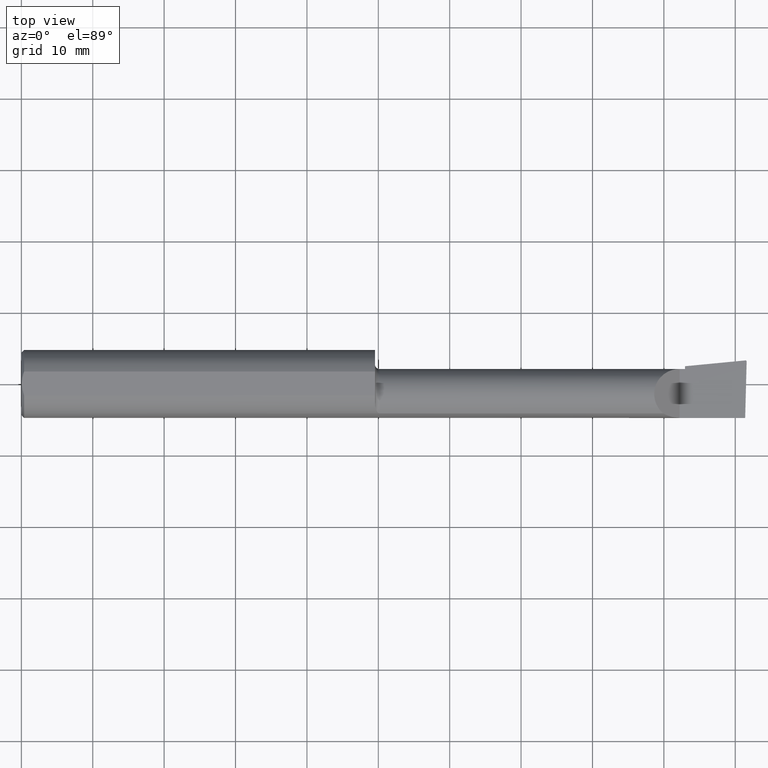
[diagram: clean part render]
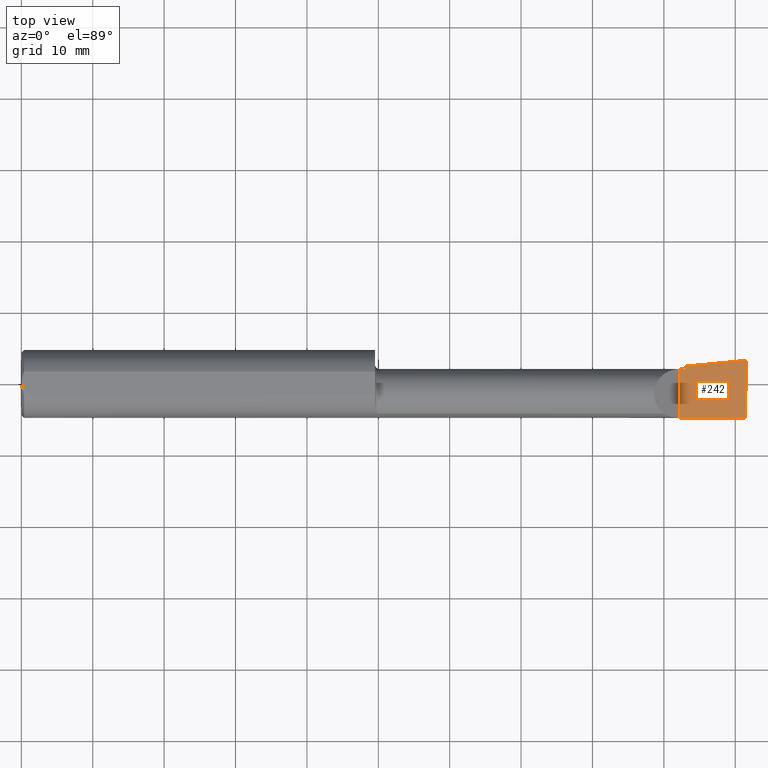
[diagram: same view with one face highlighted and labeled with its STEP entity id]
A machine part, top view. The second image highlights one B-rep face of the part: STEP entity #242.
In plain terms, the highlighted planar face has unit normal (-0, 0, -1).
Its self-contained STEP definition (entity closure, byte-faithful):
#16 = EDGE_CURVE ( 'NONE', #329, #281, #35, .T. ) ;
#35 = LINE ( 'NONE', #699, #364 ) ;
#38 = VERTEX_POINT ( 'NONE', #389 ) ;
#39 = CARTESIAN_POINT ( 'NONE',  ( 3.992906680581862489, 0.1299669910246663840, -1.701202096925064102E-16 ) ) ;
#40 = ORIENTED_EDGE ( 'NONE', *, *, #346, .T. ) ;
#46 = CARTESIAN_POINT ( 'NONE',  ( 3.992906680581862489, 0.1299669910246663840, -1.701202096925064102E-16 ) ) ;
#49 = VECTOR ( 'NONE', #416, 39.37007874015748143 ) ;
#50 = VERTEX_POINT ( 'NONE', #230 ) ;
#53 = ORIENTED_EDGE ( 'NONE', *, *, #272, .T. ) ;
#82 = AXIS2_PLACEMENT_3D ( 'NONE', #471, #138, #410 ) ;
#99 = VERTEX_POINT ( 'NONE', #171 ) ;
#109 = LINE ( 'NONE', #275, #567 ) ;
#113 = ORIENTED_EDGE ( 'NONE', *, *, #16, .F. ) ;
#136 = LINE ( 'NONE', #521, #218 ) ;
#138 = DIRECTION ( 'NONE',  ( -8.744705756855574331E-17, 0.000000000000000000, -1.000000000000000000 ) ) ;
#154 = CARTESIAN_POINT ( 'NONE',  ( 3.993310817358646236, 0.1299961668063693565, -1.707455450039281104E-16 ) ) ;
#157 = EDGE_CURVE ( 'NONE', #50, #38, #340, .T. ) ;
#171 = CARTESIAN_POINT ( 'NONE',  ( 3.629999999999999893, -0.1873499999999999888, -1.383850883036508279E-16 ) ) ;
#179 = EDGE_CURVE ( 'NONE', #284, #329, #185, .T. ) ;
#184 = FACE_OUTER_BOUND ( 'NONE', #426, .T. ) ;
#185 = LINE ( 'NONE', #409, #391 ) ;
#218 = VECTOR ( 'NONE', #628, 39.37007874015748143 ) ;
#230 = CARTESIAN_POINT ( 'NONE',  ( 3.999806390372749654, 0.1232563466314185591, -1.707108835695200937E-16 ) ) ;
#233 = CARTESIAN_POINT ( 'NONE',  ( 3.997312560284794092, 0.1299961668063694953, -1.710954856479654506E-16 ) ) ;
#241 = DIRECTION ( 'NONE',  ( -4.268512490100411279E-18, 1.000000000000000000, 3.732688574539098315E-34 ) ) ;
#242 = ADVANCED_FACE ( 'NONE', ( #184 ), #683, .F. ) ;
#250 = ORIENTED_EDGE ( 'NONE', *, *, #478, .F. ) ;
#255 = DIRECTION ( 'NONE',  ( 0.9953961983671787417, 0.09584575252022461966, -8.704446866213619353E-17 ) ) ;
#262 = EDGE_CURVE ( 'NONE', #99, #266, #360, .T. ) ;
#266 = VERTEX_POINT ( 'NONE', #582 ) ;
#272 = EDGE_CURVE ( 'NONE', #704, #50, #634, .T. ) ;
#275 = CARTESIAN_POINT ( 'NONE',  ( -5.978051742385470281E-19, 0.08265000000000000124, 1.790477306702064235E-16 ) ) ;
#281 = VERTEX_POINT ( 'NONE', #46 ) ;
#284 = VERTEX_POINT ( 'NONE', #533 ) ;
#306 = ORIENTED_EDGE ( 'NONE', *, *, #588, .F. ) ;
#329 = VERTEX_POINT ( 'NONE', #645 ) ;
#340 =( BOUNDED_CURVE ( )  B_SPLINE_CURVE ( 3, ( #444, #448, #233, #659 ),
 .UNSPECIFIED., .F., .F. ) 
 B_SPLINE_CURVE_WITH_KNOTS ( ( 4, 4 ),
 ( 1.953092279228259232, 3.511516179717479869 ),
 .UNSPECIFIED. ) 
 CURVE ( )  GEOMETRIC_REPRESENTATION_ITEM ( )  RATIONAL_B_SPLINE_CURVE ( ( 1.000000000000000000, 0.8076450242550496927, 0.8076450242550496927, 1.000000000000000000 ) ) 
 REPRESENTATION_ITEM ( '' )  );
#346 = EDGE_CURVE ( 'NONE', #38, #281, #362, .T. ) ;
#360 = LINE ( 'NONE', #576, #49 ) ;
#362 =( BOUNDED_CURVE ( )  B_SPLINE_CURVE ( 3, ( #537, #154, #652, #39 ),
 .UNSPECIFIED., .F., .T. ) 
 B_SPLINE_CURVE_WITH_KNOTS ( ( 4, 4 ),
 ( 3.511516179717479869, 3.604018710826080163 ),
 .UNSPECIFIED. ) 
 CURVE ( )  GEOMETRIC_REPRESENTATION_ITEM ( )  RATIONAL_B_SPLINE_CURVE ( ( 1.000000000000000000, 0.9992870672494007511, 0.9992870672494007511, 1.000000000000000000 ) ) 
 REPRESENTATION_ITEM ( '' )  );
#363 = CARTESIAN_POINT ( 'NONE',  ( 3.990039159128060398, -0.2497391662021650749, -1.698694533788567331E-16 ) ) ;
#364 = VECTOR ( 'NONE', #255, 39.37007874015748143 ) ;
#387 = ORIENTED_EDGE ( 'NONE', *, *, #262, .F. ) ;
#389 = CARTESIAN_POINT ( 'NONE',  ( 3.993512870449284158, 0.1299961668063693288, -1.792775245842172799E-16 ) ) ;
#391 = VECTOR ( 'NONE', #241, 39.37007874015748143 ) ;
#409 = CARTESIAN_POINT ( 'NONE',  ( 3.659999999999999698, -0.2500000000000000555, -1.410085000307074674E-16 ) ) ;
#410 = DIRECTION ( 'NONE',  ( -1.000000000000000000, 0.000000000000000000, 8.744705756855574331E-17 ) ) ;
#416 = DIRECTION ( 'NONE',  ( -0.000000000000000000, 1.000000000000000000, -0.000000000000000000 ) ) ;
#426 = EDGE_LOOP ( 'NONE', ( #53, #487, #40, #113, #612, #250, #387, #306 ) ) ;
#444 = CARTESIAN_POINT ( 'NONE',  ( 3.999806390372749654, 0.1232563466314185591, -1.707108835695200937E-16 ) ) ;
#448 = CARTESIAN_POINT ( 'NONE',  ( 3.999910038027473469, 0.1272144908750953152, -1.713226274336625530E-16 ) ) ;
#471 = CARTESIAN_POINT ( 'NONE',  ( 4.000000000000000000, -0.2500000000000000555, -1.707404996040164512E-16 ) ) ;
#478 = EDGE_CURVE ( 'NONE', #266, #284, #109, .T. ) ;
#487 = ORIENTED_EDGE ( 'NONE', *, *, #157, .T. ) ;
#518 = CARTESIAN_POINT ( 'NONE',  ( 3.991672876940992154, -0.1873499999999999888, -1.700101953615524951E-16 ) ) ;
#521 = CARTESIAN_POINT ( 'NONE',  ( 1.565719721143680372E-32, -0.1873499999999999610, 1.790477306702064235E-16 ) ) ;
#524 = VECTOR ( 'NONE', #579, 39.37007874015748143 ) ;
#533 = CARTESIAN_POINT ( 'NONE',  ( 3.659999999999999698, 0.08265000000000023717, 1.790477306702066946E-16 ) ) ;
#537 = CARTESIAN_POINT ( 'NONE',  ( 3.993512870449284158, 0.1299961668063693288, -1.792775245842172799E-16 ) ) ;
#565 = DIRECTION ( 'NONE',  ( 1.000000000000000000, 4.268512490100411279E-18, 0.000000000000000000 ) ) ;
#567 = VECTOR ( 'NONE', #565, 39.37007874015748143 ) ;
#576 = CARTESIAN_POINT ( 'NONE',  ( 3.629999999999999893, -0.2500000000000000555, -1.383850883036508279E-16 ) ) ;
#579 = DIRECTION ( 'NONE',  ( 0.02617694830779388956, 0.9996573249755593693, -2.255099122137419725E-18 ) ) ;
#582 = CARTESIAN_POINT ( 'NONE',  ( 3.629999999999999893, 0.08264999999999990410, -1.383850883036508279E-16 ) ) ;
#588 = EDGE_CURVE ( 'NONE', #704, #99, #136, .T. ) ;
#612 = ORIENTED_EDGE ( 'NONE', *, *, #179, .F. ) ;
#628 = DIRECTION ( 'NONE',  ( -1.000000000000000000, -0.000000000000000000, -0.000000000000000000 ) ) ;
#634 = LINE ( 'NONE', #363, #524 ) ;
#645 = CARTESIAN_POINT ( 'NONE',  ( 3.659999999999999698, 0.09791172361284167236, 1.790479824980329151E-16 ) ) ;
#652 = CARTESIAN_POINT ( 'NONE',  ( 3.993108609909192808, 0.1299864346073983656, -1.707278625574548654E-16 ) ) ;
#659 = CARTESIAN_POINT ( 'NONE',  ( 3.993512870449284158, 0.1299961668063693288, -1.792775245842172799E-16 ) ) ;
#683 = PLANE ( 'NONE',  #82 ) ;
#699 = CARTESIAN_POINT ( 'NONE',  ( 2.047026079080032090, -0.05740000000000000657, 4.132328855998353457E-20 ) ) ;
#704 = VERTEX_POINT ( 'NONE', #518 ) ;